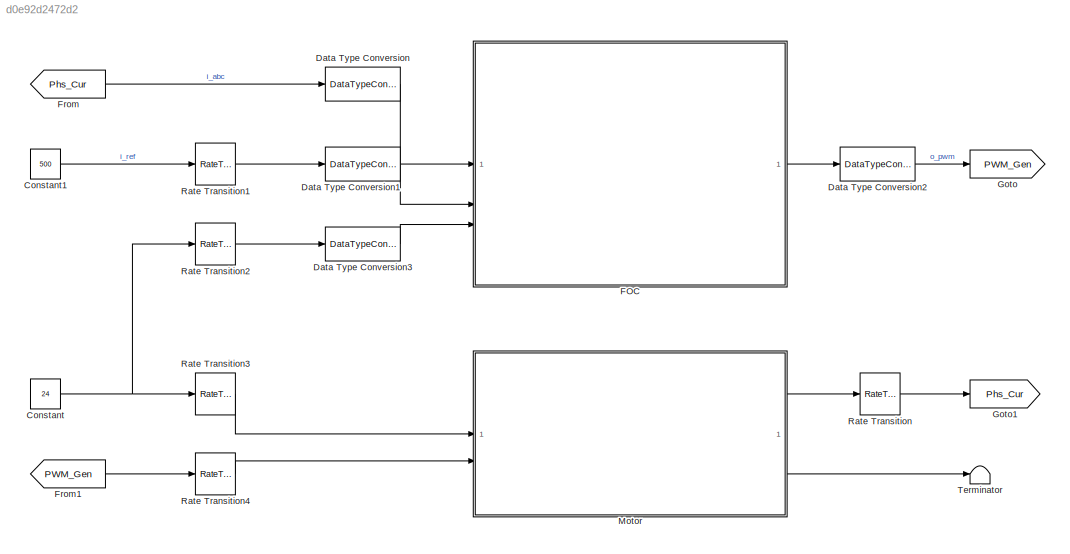
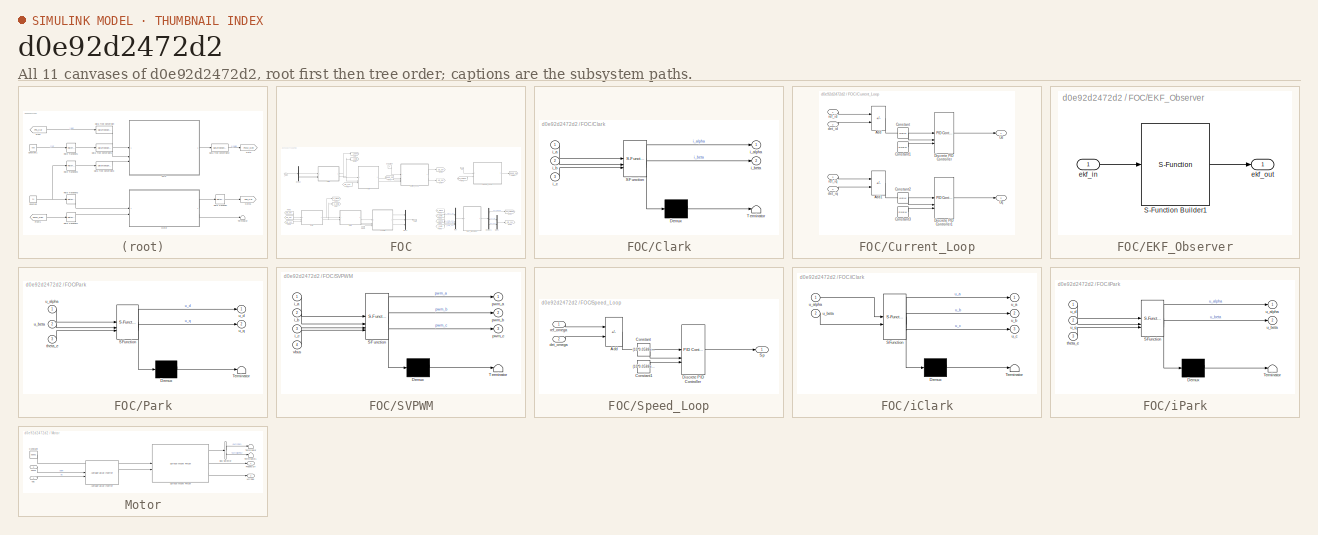
[diagram: thumbnail index - all 11 canvases of the model, root first then tree order]
MODEL slx_d0e92d2472d2
KIND model
CONFIG AbsTol = auto
CONFIG EnableMultiTasking = off
CONFIG FixedStep = 1e-6
CONFIG MaxStep = auto
CONFIG MinStep = auto
CONFIG RelTol = 1e-3
CONFIG SampleTimeConstraint = Unconstrained
CONFIG SolverName = FixedStepDiscrete
CONFIG StartTime = 0.0
CONFIG StopTime = 10.0
BLOCK [Constant] Constant
  SampleTime = Ts
  Value = 24
BLOCK [Constant] Constant1
  SampleTime = Ts
  Value = 500
BLOCK [DataTypeConversion] Data Type Conversion
  OutDataTypeStr = single
  RndMeth = Floor
  SaturateOnIntegerOverflow = off
BLOCK [DataTypeConversion] Data Type Conversion1
  OutDataTypeStr = single
  RndMeth = Floor
  SaturateOnIntegerOverflow = off
BLOCK [DataTypeConversion] Data Type Conversion2
  RndMeth = Floor
  SaturateOnIntegerOverflow = off
BLOCK [DataTypeConversion] Data Type Conversion3
  OutDataTypeStr = single
  RndMeth = Floor
  SaturateOnIntegerOverflow = off
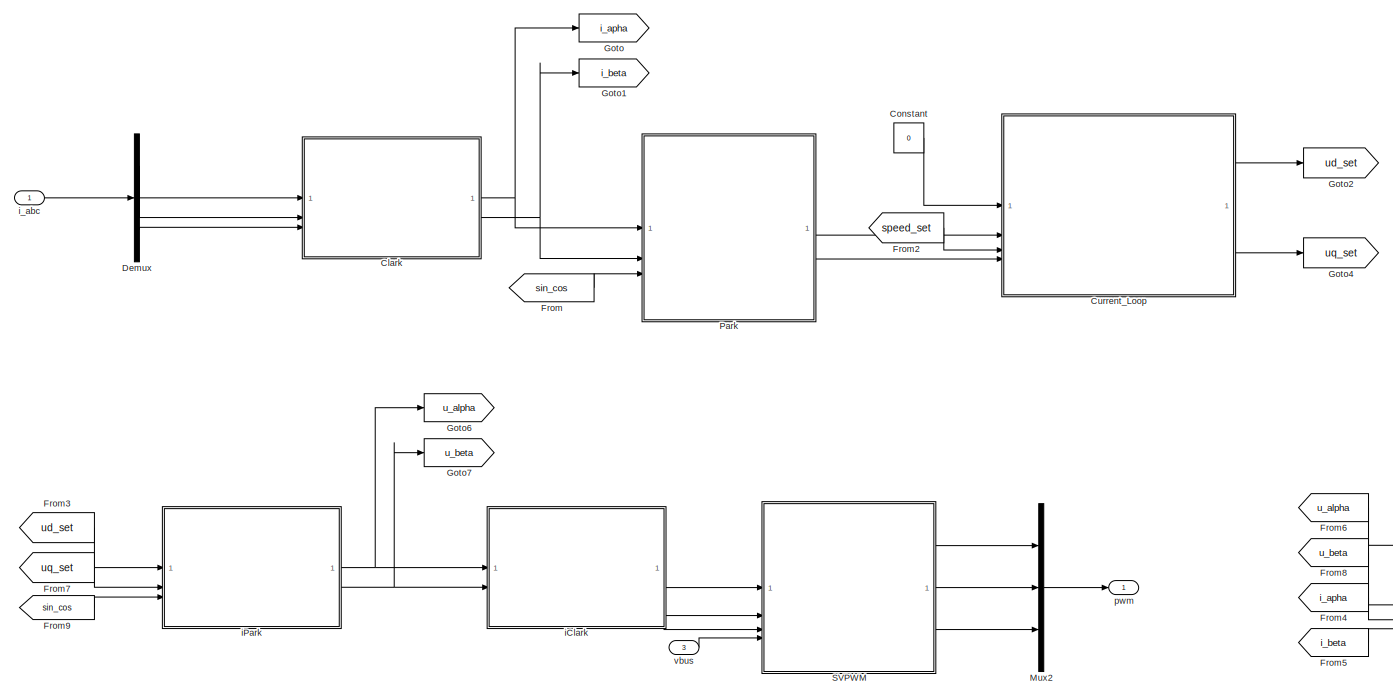
[diagram: FOC - part 1/2, center side, full height]
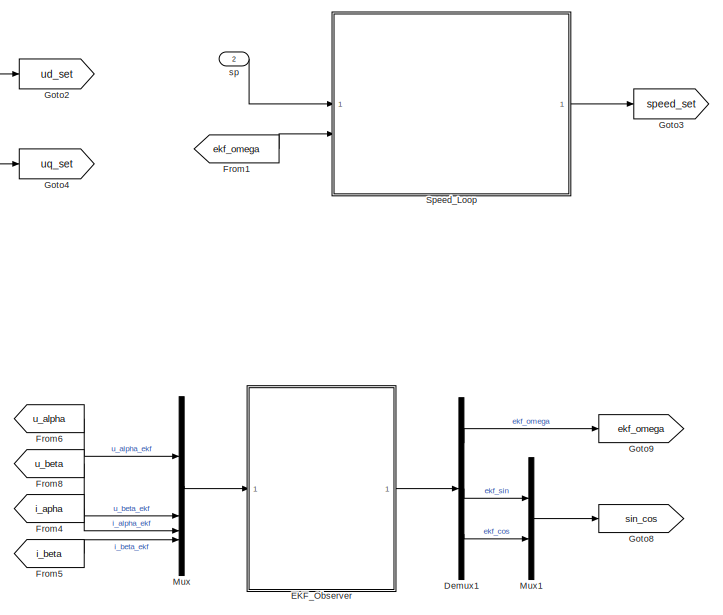
[diagram: FOC - part 2/2, right side, full height]
BLOCK [SubSystem] FOC
  RTWSystemCode = Reusable function
  SystemSampleTime = Ts
  TreatAsAtomicUnit = on
BLOCK [SubSystem] FOC/Clark
  ErrorFcn = Stateflow.Translate.translate
  PermitHierarchicalResolution = ExplicitOnly
  SFBlockType = MATLAB Function
  TreatAsAtomicUnit = on
BLOCK [Demux] FOC/Clark/ Demux 
  Outputs = 1
BLOCK [S-Function] FOC/Clark/ SFunction 
  EnableBusSupport = off
  FunctionName = sf_sfun
  PortCounts = [3 3]
  SFcnIsStateOwnerBlock = off
  SFunctionDeploymentMode = off
  Tag = Stateflow S-Function 2
BLOCK [Terminator] FOC/Clark/ Terminator 
BLOCK [Inport] FOC/Clark/i_a
BLOCK [Outport] FOC/Clark/i_alpha
  VectorParamsAs1DForOutWhenUnconnected = off
BLOCK [Inport] FOC/Clark/i_b
  Port = 2
BLOCK [Outport] FOC/Clark/i_beta
  Port = 2
BLOCK [Inport] FOC/Clark/i_c
  Port = 3
BLOCK [Constant] FOC/Constant
  OutDataTypeStr = single
  SampleTime = -1
  Value = 0
BLOCK [SubSystem] FOC/Current_Loop
  TreatAsAtomicUnit = on
BLOCK [Sum] FOC/Current_Loop/Add
  IconShape = rectangular
  Inputs = +-
BLOCK [Sum] FOC/Current_Loop/Add1
  IconShape = rectangular
  Inputs = +-
BLOCK [Constant] FOC/Current_Loop/Constant
  OutDataTypeStr = single
  SampleTime = -1
  Value = Ls*BW
BLOCK [Constant] FOC/Current_Loop/Constant1
  OutDataTypeStr = single
  SampleTime = -1
  Value = Rs*BW
BLOCK [Constant] FOC/Current_Loop/Constant2
  OutDataTypeStr = single
  SampleTime = -1
  Value = Ls*BW
BLOCK [Constant] FOC/Current_Loop/Constant3
  OutDataTypeStr = single
  SampleTime = -1
  Value = Rs*BW
BLOCK [Reference] FOC/Current_Loop/Discrete PID Controller  REF=slpidlib/PID Controller
  SourceBlock = slpidlib/PID Controller
  SourceType = PID 1dof
BLOCK [Reference] FOC/Current_Loop/Discrete PID Controller1  REF=slpidlib/PID Controller
  SourceBlock = slpidlib/PID Controller
  SourceType = PID 1dof
BLOCK [Outport] FOC/Current_Loop/Ud
BLOCK [Outport] FOC/Current_Loop/Uq
  Port = 2
BLOCK [Inport] FOC/Current_Loop/det_id
  Port = 2
BLOCK [Inport] FOC/Current_Loop/det_iq
  Port = 4
BLOCK [Inport] FOC/Current_Loop/ref_id
BLOCK [Inport] FOC/Current_Loop/ref_iq
  Port = 3
BLOCK [Demux] FOC/Demux
  Outputs = 3
BLOCK [Demux] FOC/Demux1
  Outputs = 3
BLOCK [SubSystem] FOC/EKF_Observer
  RTWSystemCode = Reusable function
BLOCK [S-Function] FOC/EKF_Observer/S-Function Builder1
  CopyFcn = set_param(gcbh,'LinkStatus','none')
  EnableBusSupport = off
  FunctionName = ekf_sfunc
  OpenFcn = sfunctionwizard(gcbh)
  SFcnIsStateOwnerBlock = off
  SFunctionDeploymentMode = off
  SFunctionModules = ekf_sfunc_wrapper.c
BLOCK [Inport] FOC/EKF_Observer/ekf_in
BLOCK [Outport] FOC/EKF_Observer/ekf_out
BLOCK [From] FOC/From
  GotoTag = sin_cos
BLOCK [From] FOC/From1
  GotoTag = ekf_omega
BLOCK [From] FOC/From2
  GotoTag = speed_set
BLOCK [From] FOC/From3
  GotoTag = ud_set
BLOCK [From] FOC/From4
  GotoTag = i_apha
BLOCK [From] FOC/From5
  GotoTag = i_beta
BLOCK [From] FOC/From6
  GotoTag = u_alpha
BLOCK [From] FOC/From7
  GotoTag = uq_set
BLOCK [From] FOC/From8
  GotoTag = u_beta
BLOCK [From] FOC/From9
  GotoTag = sin_cos
BLOCK [Goto] FOC/Goto
  GotoTag = i_apha
BLOCK [Goto] FOC/Goto1
  GotoTag = i_beta
BLOCK [Goto] FOC/Goto2
  GotoTag = ud_set
BLOCK [Goto] FOC/Goto3
  GotoTag = speed_set
BLOCK [Goto] FOC/Goto4
  GotoTag = uq_set
BLOCK [Goto] FOC/Goto6
  GotoTag = u_alpha
BLOCK [Goto] FOC/Goto7
  GotoTag = u_beta
BLOCK [Goto] FOC/Goto8
  GotoTag = sin_cos
BLOCK [Goto] FOC/Goto9
  GotoTag = ekf_omega
BLOCK [Mux] FOC/Mux
  DisplayOption = bar
BLOCK [Mux] FOC/Mux1
  DisplayOption = bar
  Inputs = 2
BLOCK [Mux] FOC/Mux2
  DisplayOption = bar
  Inputs = 3
BLOCK [SubSystem] FOC/Park
  ErrorFcn = Stateflow.Translate.translate
  PermitHierarchicalResolution = ExplicitOnly
  SFBlockType = MATLAB Function
  TreatAsAtomicUnit = on
BLOCK [Demux] FOC/Park/ Demux 
  Outputs = 1
BLOCK [S-Function] FOC/Park/ SFunction 
  EnableBusSupport = off
  FunctionName = sf_sfun
  PortCounts = [3 3]
  SFcnIsStateOwnerBlock = off
  SFunctionDeploymentMode = off
  Tag = Stateflow S-Function 3
BLOCK [Terminator] FOC/Park/ Terminator 
BLOCK [Inport] FOC/Park/theta_e
  Port = 3
BLOCK [Inport] FOC/Park/u_alpha
BLOCK [Inport] FOC/Park/u_beta
  Port = 2
BLOCK [Outport] FOC/Park/u_d
  VectorParamsAs1DForOutWhenUnconnected = off
BLOCK [Outport] FOC/Park/u_q
  Port = 2
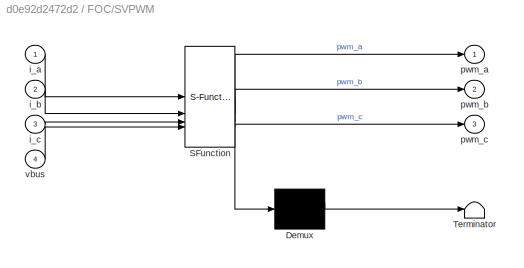
BLOCK [SubSystem] FOC/SVPWM
  ErrorFcn = Stateflow.Translate.translate
  PermitHierarchicalResolution = ExplicitOnly
  SFBlockType = MATLAB Function
  TreatAsAtomicUnit = on
BLOCK [Demux] FOC/SVPWM/ Demux 
  Outputs = 1
BLOCK [S-Function] FOC/SVPWM/ SFunction 
  EnableBusSupport = off
  FunctionName = sf_sfun
  PortCounts = [4 4]
  SFcnIsStateOwnerBlock = off
  SFunctionDeploymentMode = off
  Tag = Stateflow S-Function 5
BLOCK [Terminator] FOC/SVPWM/ Terminator 
BLOCK [Inport] FOC/SVPWM/i_a
BLOCK [Inport] FOC/SVPWM/i_b
  Port = 2
BLOCK [Inport] FOC/SVPWM/i_c
  Port = 3
BLOCK [Outport] FOC/SVPWM/pwm_a
  VectorParamsAs1DForOutWhenUnconnected = off
BLOCK [Outport] FOC/SVPWM/pwm_b
  Port = 2
BLOCK [Outport] FOC/SVPWM/pwm_c
  Port = 3
BLOCK [Inport] FOC/SVPWM/vbus
  Port = 4
BLOCK [SubSystem] FOC/Speed_Loop
  TreatAsAtomicUnit = on
BLOCK [Sum] FOC/Speed_Loop/Add
  IconShape = rectangular
  Inputs = +-
BLOCK [Constant] FOC/Speed_Loop/Constant
  OutDataTypeStr = single
  SampleTime = -1
  Value = (10*0.0588e-4)/(1.5*Pole_Pairs*Flux)
BLOCK [Constant] FOC/Speed_Loop/Constant1
  OutDataTypeStr = single
  SampleTime = -1
  Value = (10*0.0588e-4)/(1.5*Pole_Pairs*Flux)
BLOCK [Reference] FOC/Speed_Loop/Discrete PID Controller  REF=slpidlib/PID Controller
  SourceBlock = slpidlib/PID Controller
  SourceType = PID 1dof
BLOCK [Outport] FOC/Speed_Loop/Sp
BLOCK [Inport] FOC/Speed_Loop/det_omega
  Port = 2
BLOCK [Inport] FOC/Speed_Loop/ref_omega
BLOCK [SubSystem] FOC/iClark
  ErrorFcn = Stateflow.Translate.translate
  PermitHierarchicalResolution = ExplicitOnly
  SFBlockType = MATLAB Function
  TreatAsAtomicUnit = on
BLOCK [Demux] FOC/iClark/ Demux 
  Outputs = 1
BLOCK [S-Function] FOC/iClark/ SFunction 
  EnableBusSupport = off
  FunctionName = sf_sfun
  PortCounts = [2 4]
  SFcnIsStateOwnerBlock = off
  SFunctionDeploymentMode = off
  Tag = Stateflow S-Function 1
BLOCK [Terminator] FOC/iClark/ Terminator 
BLOCK [Outport] FOC/iClark/u_a
  VectorParamsAs1DForOutWhenUnconnected = off
BLOCK [Inport] FOC/iClark/u_alpha
BLOCK [Outport] FOC/iClark/u_b
  Port = 2
BLOCK [Inport] FOC/iClark/u_beta
  Port = 2
BLOCK [Outport] FOC/iClark/u_c
  Port = 3
BLOCK [SubSystem] FOC/iPark
  ErrorFcn = Stateflow.Translate.translate
  PermitHierarchicalResolution = ExplicitOnly
  SFBlockType = MATLAB Function
  TreatAsAtomicUnit = on
BLOCK [Demux] FOC/iPark/ Demux 
  Outputs = 1
BLOCK [S-Function] FOC/iPark/ SFunction 
  EnableBusSupport = off
  FunctionName = sf_sfun
  PortCounts = [3 3]
  SFcnIsStateOwnerBlock = off
  SFunctionDeploymentMode = off
  Tag = Stateflow S-Function 4
BLOCK [Terminator] FOC/iPark/ Terminator 
BLOCK [Inport] FOC/iPark/theta_e
  Port = 3
BLOCK [Outport] FOC/iPark/u_alpha
  VectorParamsAs1DForOutWhenUnconnected = off
BLOCK [Outport] FOC/iPark/u_beta
  Port = 2
BLOCK [Inport] FOC/iPark/u_d
BLOCK [Inport] FOC/iPark/u_q
  Port = 2
BLOCK [Inport] FOC/i_abc
BLOCK [Outport] FOC/pwm
BLOCK [Inport] FOC/sp
  Port = 2
BLOCK [Inport] FOC/vbus
  Port = 3
BLOCK [From] From
  GotoTag = Phs_Cur
BLOCK [From] From1
  GotoTag = PWM_Gen
BLOCK [Goto] Goto
  GotoTag = PWM_Gen
BLOCK [Goto] Goto1
  GotoTag = Phs_Cur
BLOCK [SubSystem] Motor
BLOCK [Reference] Motor/Average-Value Inverter  REF=mcbplantlib/Average-Value Inverter
  SourceBlock = mcbplantlib/Average-Value Inverter
  SourceType = Average Value Inverter
BLOCK [BusSelector] Motor/Bus Selector
  OutputSignals = MtrPos,MtrElcPos
BLOCK [Constant] Motor/Constant
  SampleTime = -1
  Value = 0.0001
BLOCK [Outport] Motor/MtrSpd
  Port = 2
BLOCK [Inport] Motor/PWM
  Port = 2
BLOCK [Outport] Motor/PhaseCurr
BLOCK [Reference] Motor/Surface Mount PMSM  REF=autolibpmsmexterior/Surface Mount PMSM
  SourceBlock = autolibpmsmexterior/Surface Mount PMSM
  SourceType = Surface Mount PMSM
BLOCK [Terminator] Motor/Terminator
BLOCK [Terminator] Motor/Terminator1
BLOCK [Inport] Motor/Vdc
BLOCK [RateTransition] Rate Transition
BLOCK [RateTransition] Rate Transition1
BLOCK [RateTransition] Rate Transition2
BLOCK [RateTransition] Rate Transition3
BLOCK [RateTransition] Rate Transition4
BLOCK [Terminator] Terminator
LINE Constant1:1 -> Rate Transition1:1
NET Constant:1 -> Rate Transition2:1, Rate Transition3:1
LINE Data Type Conversion1:1 -> FOC:2
LINE Data Type Conversion2:1 -> Goto:1
LINE Data Type Conversion3:1 -> FOC:3
LINE Data Type Conversion:1 -> FOC:1
NET FOC/Clark:1 -> FOC/Goto:1, FOC/Park:1
NET FOC/Clark:2 -> FOC/Goto1:1, FOC/Park:2
LINE FOC/Constant:1 -> FOC/Current_Loop:1
LINE FOC/Current_Loop/Add1:1 -> FOC/Current_Loop/Discrete PID Controller1:1
LINE FOC/Current_Loop/Add:1 -> FOC/Current_Loop/Discrete PID Controller:1
LINE FOC/Current_Loop/Constant1:1 -> FOC/Current_Loop/Discrete PID Controller:3
LINE FOC/Current_Loop/Constant2:1 -> FOC/Current_Loop/Discrete PID Controller1:2
LINE FOC/Current_Loop/Constant3:1 -> FOC/Current_Loop/Discrete PID Controller1:3
LINE FOC/Current_Loop/Constant:1 -> FOC/Current_Loop/Discrete PID Controller:2
LINE FOC/Current_Loop/Discrete PID Controller1:1 -> FOC/Current_Loop/Uq:1
LINE FOC/Current_Loop/Discrete PID Controller:1 -> FOC/Current_Loop/Ud:1
LINE FOC/Current_Loop/det_id:1 -> FOC/Current_Loop/Add:2
LINE FOC/Current_Loop/det_iq:1 -> FOC/Current_Loop/Add1:2
LINE FOC/Current_Loop/ref_id:1 -> FOC/Current_Loop/Add:1
LINE FOC/Current_Loop/ref_iq:1 -> FOC/Current_Loop/Add1:1
LINE FOC/Current_Loop:1 -> FOC/Goto2:1
LINE FOC/Current_Loop:2 -> FOC/Goto4:1
LINE FOC/Demux1:1 -> FOC/Goto9:1
LINE FOC/Demux1:2 -> FOC/Mux1:1
LINE FOC/Demux1:3 -> FOC/Mux1:2
LINE FOC/Demux:1 -> FOC/Clark:1
LINE FOC/Demux:2 -> FOC/Clark:2
LINE FOC/Demux:3 -> FOC/Clark:3
LINE FOC/EKF_Observer/S-Function Builder1:1 -> FOC/EKF_Observer/ekf_out:1
LINE FOC/EKF_Observer/ekf_in:1 -> FOC/EKF_Observer/S-Function Builder1:1
LINE FOC/EKF_Observer:1 -> FOC/Demux1:1
LINE FOC/From1:1 -> FOC/Speed_Loop:2
LINE FOC/From2:1 -> FOC/Current_Loop:3
LINE FOC/From3:1 -> FOC/iPark:1
LINE FOC/From4:1 -> FOC/Mux:3
LINE FOC/From5:1 -> FOC/Mux:4
LINE FOC/From6:1 -> FOC/Mux:1
LINE FOC/From7:1 -> FOC/iPark:2
LINE FOC/From8:1 -> FOC/Mux:2
LINE FOC/From9:1 -> FOC/iPark:3
LINE FOC/From:1 -> FOC/Park:3
LINE FOC/Mux1:1 -> FOC/Goto8:1
LINE FOC/Mux2:1 -> FOC/pwm:1
LINE FOC/Mux:1 -> FOC/EKF_Observer:1
LINE FOC/Park:1 -> FOC/Current_Loop:2
LINE FOC/Park:2 -> FOC/Current_Loop:4
LINE FOC/SVPWM:1 -> FOC/Mux2:1
LINE FOC/SVPWM:2 -> FOC/Mux2:2
LINE FOC/SVPWM:3 -> FOC/Mux2:3
LINE FOC/Speed_Loop/Add:1 -> FOC/Speed_Loop/Discrete PID Controller:1
LINE FOC/Speed_Loop/Constant1:1 -> FOC/Speed_Loop/Discrete PID Controller:3
LINE FOC/Speed_Loop/Constant:1 -> FOC/Speed_Loop/Discrete PID Controller:2
LINE FOC/Speed_Loop/Discrete PID Controller:1 -> FOC/Speed_Loop/Sp:1
LINE FOC/Speed_Loop/det_omega:1 -> FOC/Speed_Loop/Add:2
LINE FOC/Speed_Loop/ref_omega:1 -> FOC/Speed_Loop/Add:1
LINE FOC/Speed_Loop:1 -> FOC/Goto3:1
LINE FOC/iClark:1 -> FOC/SVPWM:1
LINE FOC/iClark:2 -> FOC/SVPWM:2
LINE FOC/iClark:3 -> FOC/SVPWM:3
NET FOC/iPark:1 -> FOC/Goto6:1, FOC/iClark:1
NET FOC/iPark:2 -> FOC/Goto7:1, FOC/iClark:2
LINE FOC/i_abc:1 -> FOC/Demux:1
LINE FOC/sp:1 -> FOC/Speed_Loop:1
LINE FOC/vbus:1 -> FOC/SVPWM:4
LINE FOC:1 -> Data Type Conversion2:1
LINE From1:1 -> Rate Transition4:1
LINE From:1 -> Data Type Conversion:1
LINE Motor/Average-Value Inverter:1 -> Motor/Surface Mount PMSM:2
LINE Motor/Bus Selector:1 -> Motor/Terminator:1
LINE Motor/Bus Selector:2 -> Motor/Terminator1:1
LINE Motor/Constant:1 -> Motor/Surface Mount PMSM:1
LINE Motor/PWM:1 -> Motor/Average-Value Inverter:1
LINE Motor/Surface Mount PMSM:1 -> Motor/Bus Selector:1
LINE Motor/Surface Mount PMSM:2 -> Motor/PhaseCurr:1
LINE Motor/Surface Mount PMSM:3 -> Motor/MtrSpd:1
LINE Motor/Vdc:1 -> Motor/Average-Value Inverter:2
LINE Motor:1 -> Rate Transition:1
LINE Motor:2 -> Terminator:1
LINE Rate Transition1:1 -> Data Type Conversion1:1
LINE Rate Transition2:1 -> Data Type Conversion3:1
LINE Rate Transition3:1 -> Motor:1
LINE Rate Transition4:1 -> Motor:2
LINE Rate Transition:1 -> Goto1:1
note: NET lines group one-source signal fan-out (src -> all destinations, sorted); 1:1 wires keep LINE
CHART FOC/iClark states=1 transitions=1
  STATE_LABEL 'eML_blk_kernel()'
  STATE_LABEL 'SCRIPT:\nfunction [u_a, u_b, u_c] = iclark_fun(u_alpha, u_beta)\n%#codegen\n    u_a = u_alpha;\n    u_b = -1/2*u_alpha + sqrt(3)/2*u_beta;\n    u_c = -1/2*u_alpha - sqrt(3)/2*u_beta;\nend'
CHART FOC/Clark states=1 transitions=1
  STATE_LABEL 'eML_blk_kernel()'
  STATE_LABEL 'SCRIPT:\nfunction [i_alpha, i_beta] = clark_fun(i_a, i_b, i_c)\n%#codegen\n    i_alpha = 2/3*i_a - 1/3*(i_b + i_c);\n    i_beta = sqrt(3)/3*(i_b + i_c);\nend'
CHART FOC/Park states=1 transitions=1
  STATE_LABEL 'eML_blk_kernel()'
  STATE_LABEL 'SCRIPT:\nfunction [u_d, u_q] = park_fun(u_alpha, u_beta, theta_e)\n%#codegen\n    u_d = u_alpha*theta_e(2) + u_beta*theta_e(1);\n    u_q = u_beta*theta_e(2) - u_alpha*theta_e(1);\nend'
CHART FOC/iPark states=1 transitions=1
  STATE_LABEL 'eML_blk_kernel()'
  STATE_LABEL 'SCRIPT:\nfunction [u_alpha, u_beta] = ipark_fun(u_d, u_q, theta_e)\n%#codegen\n    u_alpha = u_d*theta_e(2) - u_q*theta_e(1);\n    u_beta = u_d*theta_e(1) + u_q*theta_e(2);\nend'
CHART FOC/SVPWM states=1 transitions=1
  STATE_LABEL 'eML_blk_kernel()'
  STATE_LABEL 'SCRIPT:\nfunction [pwm_a, pwm_b, pwm_c] = svpwm_fun(i_a, i_b, i_c, vbus)\n%#codegen\n    % mean_zero\n    min_val = min([i_a, i_b, i_c]);\n    max_val = max([i_a, i_b, i_c]);\n    sum_val = min_val + max_val;\n\n    m_zero = -1/2*sum_val;\n\n    % pwm gen\n    pwm_a = (i_a + m_zero)/vbus + 0.5;\n    pwm_b = (i_b + m_zero)/vbus + 0.5;\n    pwm_c = (i_c + m_zero)/vbus + 0.5;\nend'
CHART  states=0 transitions=0
CHART  states=0 transitions=0
CHART  states=0 transitions=0
CHART  states=0 transitions=0
CHART  states=0 transitions=0
